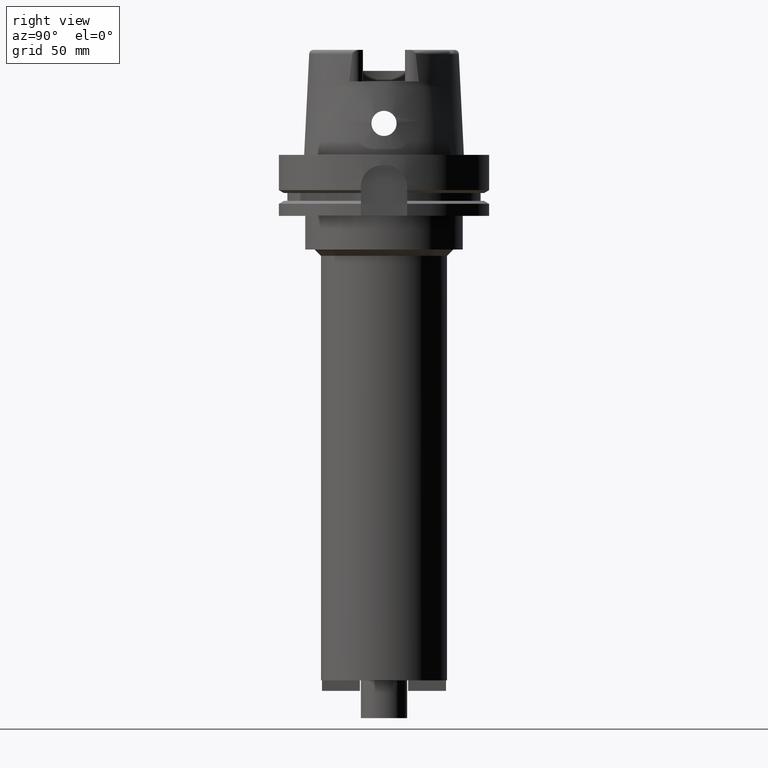
[diagram: clean part render]
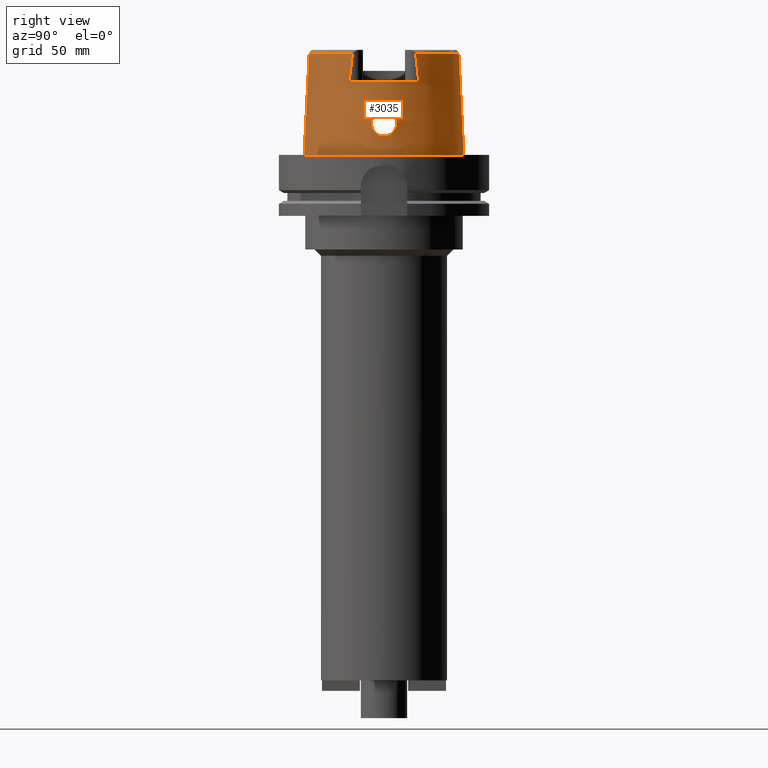
[diagram: same view with one face highlighted and labeled with its STEP entity id]
A machine part, right view. The second image highlights one B-rep face of the part: STEP entity #3035.
In plain terms, the highlighted conical surface has half-angle 2.862 deg.
Its self-contained STEP definition (entity closure, byte-faithful):
#266=CARTESIAN_POINT('',(3.225000552017E1,-1.506439838859E1,4.810004084391E1));
#271=CARTESIAN_POINT('',(0.E0,0.E0,4.809987853799E1));
#272=DIRECTION('',(0.E0,0.E0,-1.E0));
#273=DIRECTION('',(9.060280460805E-1,-4.232176505246E-1,0.E0));
#274=AXIS2_PLACEMENT_3D('',#271,#272,#273);
#297=DIRECTION('',(5.154182075151E-5,-4.993927430816E-2,-9.987522546783E-1));
#298=VECTOR('',#297,4.815996991514E1);
#299=CARTESIAN_POINT('',(-2.482252536761E-3,-3.559494263425E1,
4.809987853799E1));
#300=LINE('',#299,#298);
#350=CARTESIAN_POINT('',(3.224999527489E1,1.655287543599E1,3.5E1));
#351=CARTESIAN_POINT('',(3.224999527489E1,1.639226210430E1,3.646677430492E1));
#352=CARTESIAN_POINT('',(3.224999958003E1,1.606837256711E1,3.939292726440E1));
#353=CARTESIAN_POINT('',(3.225000855756E1,1.557203225154E1,4.375938305010E1));
#354=CARTESIAN_POINT('',(3.224998031234E1,1.523513280821E1,4.665592128435E1));
#355=CARTESIAN_POINT('',(3.224998031234E1,1.506460241455E1,4.809931837720E1));
#360=DIRECTION('',(-5.154182075159E-5,4.993927430816E-2,-9.987522546783E-1));
#361=VECTOR('',#360,4.815996991514E1);
#362=CARTESIAN_POINT('',(2.482252536765E-3,3.559494263425E1,4.809987853799E1));
#363=LINE('',#362,#361);
#367=CARTESIAN_POINT('',(3.225000552017E1,-1.506439838859E1,4.810004084391E1));
#368=CARTESIAN_POINT('',(3.225000552017E1,-1.523503283629E1,4.665577854182E1));
#369=CARTESIAN_POINT('',(3.225000026293E1,-1.557219475478E1,4.376011557271E1));
#370=CARTESIAN_POINT('',(3.224999079948E1,-1.606856472793E1,3.939344266668E1));
#371=CARTESIAN_POINT('',(3.225002129259E1,-1.639212166417E1,3.646699412941E1));
#372=CARTESIAN_POINT('',(3.225002129259E1,-1.655276054267E1,3.5E1));
#377=CARTESIAN_POINT('',(3.694998175923E1,-1.285203130633E-13,2.1E1));
#378=CARTESIAN_POINT('',(3.694998175923E1,-5.707505665297E-1,2.1E1));
#379=CARTESIAN_POINT('',(3.693100866033E1,-1.713503551814E0,2.083593980872E1));
#380=CARTESIAN_POINT('',(3.685716119649E1,-3.292167192621E0,2.011502282162E1));
#381=CARTESIAN_POINT('',(3.676972629170E1,-4.605716176649E0,1.897313146099E1));
#382=CARTESIAN_POINT('',(3.671115060663E1,-5.536641560642E0,1.751576516637E1));
#383=CARTESIAN_POINT('',(3.671671583760E1,-6.019374640369E0,1.586409288988E1));
#384=CARTESIAN_POINT('',(3.680372651816E1,-6.020383905871E0,1.414457093612E1));
#385=CARTESIAN_POINT('',(3.696460822754E1,-5.541035066604E0,1.249286936756E1));
#386=CARTESIAN_POINT('',(3.717024798589E1,-4.606415138608E0,1.102614895967E1));
#387=CARTESIAN_POINT('',(3.737153027094E1,-3.285978803971E0,9.880380626134E0));
#388=CARTESIAN_POINT('',(3.751561566798E1,-1.703857691403E0,9.161495475687E0));
#389=CARTESIAN_POINT('',(3.755000165825E1,-5.665000533550E-1,9.E0));
#390=CARTESIAN_POINT('',(3.755000165825E1,0.E0,9.E0));
#395=CARTESIAN_POINT('',(3.755000165825E1,0.E0,9.E0));
#396=CARTESIAN_POINT('',(3.755000165825E1,5.654459465022E-1,9.E0));
#397=CARTESIAN_POINT('',(3.751562844375E1,1.697939199655E0,9.161548127664E0));
#398=CARTESIAN_POINT('',(3.737437848135E1,3.259544740585E0,9.865991294377E0));
#399=CARTESIAN_POINT('',(3.717533057047E1,4.578975859574E0,1.099477071627E1));
#400=CARTESIAN_POINT('',(3.696817361623E1,5.528524006450E0,1.246157884659E1));
#401=CARTESIAN_POINT('',(3.680435991004E1,6.020561700910E0,1.413166605946E1));
#402=CARTESIAN_POINT('',(3.671644341941E1,6.019859777156E0,1.586800692598E1));
#403=CARTESIAN_POINT('',(3.671134601171E1,5.533155282594E0,1.752253164269E1));
#404=CARTESIAN_POINT('',(3.676971886527E1,4.605850959018E0,1.897142421006E1));
#405=CARTESIAN_POINT('',(3.685672667205E1,3.299241028130E0,2.011030374930E1));
#406=CARTESIAN_POINT('',(3.693088391216E1,1.718561976377E0,2.083493653283E1));
#407=CARTESIAN_POINT('',(3.694998175923E1,5.728844625719E-1,2.1E1));
#408=CARTESIAN_POINT('',(3.694998175923E1,-1.285203130633E-13,2.1E1));
#443=CARTESIAN_POINT('',(0.E0,0.E0,3.5E1));
#444=DIRECTION('',(0.E0,0.E0,-1.E0));
#445=DIRECTION('',(8.896561898443E-1,4.566309931135E-1,0.E0));
#446=AXIS2_PLACEMENT_3D('',#443,#444,#445);
#2053=CARTESIAN_POINT('',(0.E0,0.E0,1.136868377216E-12));
#2054=DIRECTION('',(0.E0,0.E0,1.E0));
#2055=DIRECTION('',(0.E0,-1.E0,0.E0));
#2056=AXIS2_PLACEMENT_3D('',#2053,#2054,#2055);
#2403=CARTESIAN_POINT('',(0.E0,0.E0,4.809987853799E1));
#2404=DIRECTION('',(0.E0,0.E0,-1.E0));
#2405=DIRECTION('',(0.E0,1.E0,0.E0));
#2406=AXIS2_PLACEMENT_3D('',#2403,#2404,#2405);
#2488=CARTESIAN_POINT('',(0.E0,3.559494289391E1,4.809987853799E1));
#2489=VERTEX_POINT('',#2488);
#2490=CARTESIAN_POINT('',(3.224994093704E1,1.506456999646E1,4.809987853799E1));
#2491=VERTEX_POINT('',#2490);
#2495=VERTEX_POINT('',#266);
#2496=CARTESIAN_POINT('',(1.065814103640E-14,-3.559494289391E1,
4.809987853799E1));
#2497=VERTEX_POINT('',#2496);
#2498=CARTESIAN_POINT('',(0.E0,-3.800001658252E1,7.602807272633E-13));
#2499=VERTEX_POINT('',#2498);
#2500=CARTESIAN_POINT('',(0.E0,3.800001658252E1,1.136868377216E-12));
#2501=VERTEX_POINT('',#2500);
#2504=CARTESIAN_POINT('',(3.225E1,1.655285457013E1,3.5E1));
#2505=CARTESIAN_POINT('',(3.225E1,-1.655285457013E1,3.5E1));
#2506=VERTEX_POINT('',#2504);
#2507=VERTEX_POINT('',#2505);
#2508=VERTEX_POINT('',#377);
#2509=VERTEX_POINT('',#390);
#3009=CARTESIAN_POINT('',(0.E0,0.E0,2.404993926900E1));
#3010=DIRECTION('',(0.E0,0.E0,-1.E0));
#3011=DIRECTION('',(0.E0,-1.E0,0.E0));
#3012=AXIS2_PLACEMENT_3D('',#3009,#3010,#3011);
#3013=CONICAL_SURFACE('',#3012,3.679747973821E1,2.8625E0);
#3015=ORIENTED_EDGE('',*,*,#3014,.F.);
#3017=ORIENTED_EDGE('',*,*,#3016,.T.);
#3019=ORIENTED_EDGE('',*,*,#3018,.F.);
#3020=ORIENTED_EDGE('',*,*,#2994,.T.);
#3022=ORIENTED_EDGE('',*,*,#3021,.F.);
#3023=ORIENTED_EDGE('',*,*,#2990,.F.);
#3024=ORIENTED_EDGE('',*,*,#2962,.F.);
#3026=ORIENTED_EDGE('',*,*,#3025,.T.);
#3027=EDGE_LOOP('',(#3015,#3017,#3019,#3020,#3022,#3023,#3024,#3026));
#3028=FACE_OUTER_BOUND('',#3027,.F.);
#3030=ORIENTED_EDGE('',*,*,#3029,.T.);
#3032=ORIENTED_EDGE('',*,*,#3031,.T.);
#3033=EDGE_LOOP('',(#3030,#3032));
#3034=FACE_BOUND('',#3033,.F.);
#275=CIRCLE('',#274,3.559494289391E1);
#356=B_SPLINE_CURVE_WITH_KNOTS('',3,(#350,#351,#352,#353,#354,#355),
.UNSPECIFIED.,.F.,.F.,(4,1,1,4),(0.E0,3.333333333333E-1,6.666666666667E-1,1.E0),
.UNSPECIFIED.);
#373=B_SPLINE_CURVE_WITH_KNOTS('',3,(#367,#368,#369,#370,#371,#372),
.UNSPECIFIED.,.F.,.F.,(4,1,1,4),(0.E0,3.333333333333E-1,6.666666666667E-1,1.E0),
.UNSPECIFIED.);
#391=B_SPLINE_CURVE_WITH_KNOTS('',3,(#377,#378,#379,#380,#381,#382,#383,#384,
#385,#386,#387,#388,#389,#390),.UNSPECIFIED.,.F.,.F.,(4,1,1,1,1,1,1,1,1,1,1,4),(
0.E0,9.090909090909E-2,1.818181818182E-1,2.727272727273E-1,3.636363636364E-1,
4.545454545455E-1,5.454545454545E-1,6.363636363636E-1,7.272727272727E-1,
8.181818181818E-1,9.090909090909E-1,1.E0),.UNSPECIFIED.);
#409=B_SPLINE_CURVE_WITH_KNOTS('',3,(#395,#396,#397,#398,#399,#400,#401,#402,
#403,#404,#405,#406,#407,#408),.UNSPECIFIED.,.F.,.F.,(4,1,1,1,1,1,1,1,1,1,1,4),(
0.E0,9.090909090909E-2,1.818181818182E-1,2.727272727273E-1,3.636363636364E-1,
4.545454545455E-1,5.454545454545E-1,6.363636363636E-1,7.272727272727E-1,
8.181818181818E-1,9.090909090909E-1,1.E0),.UNSPECIFIED.);
#447=CIRCLE('',#446,3.624995854370E1);
#2057=CIRCLE('',#2056,3.800001658252E1);
#2407=CIRCLE('',#2406,3.559494289391E1);
#2962=EDGE_CURVE('',#2495,#2497,#275,.T.);
#2990=EDGE_CURVE('',#2497,#2499,#300,.T.);
#2994=EDGE_CURVE('',#2489,#2501,#363,.T.);
#3014=EDGE_CURVE('',#2506,#2507,#447,.T.);
#3016=EDGE_CURVE('',#2506,#2491,#356,.T.);
#3018=EDGE_CURVE('',#2489,#2491,#2407,.T.);
#3021=EDGE_CURVE('',#2499,#2501,#2057,.T.);
#3025=EDGE_CURVE('',#2495,#2507,#373,.T.);
#3029=EDGE_CURVE('',#2508,#2509,#391,.T.);
#3031=EDGE_CURVE('',#2509,#2508,#409,.T.);
#3035=ADVANCED_FACE('',(#3028,#3034),#3013,.T.);